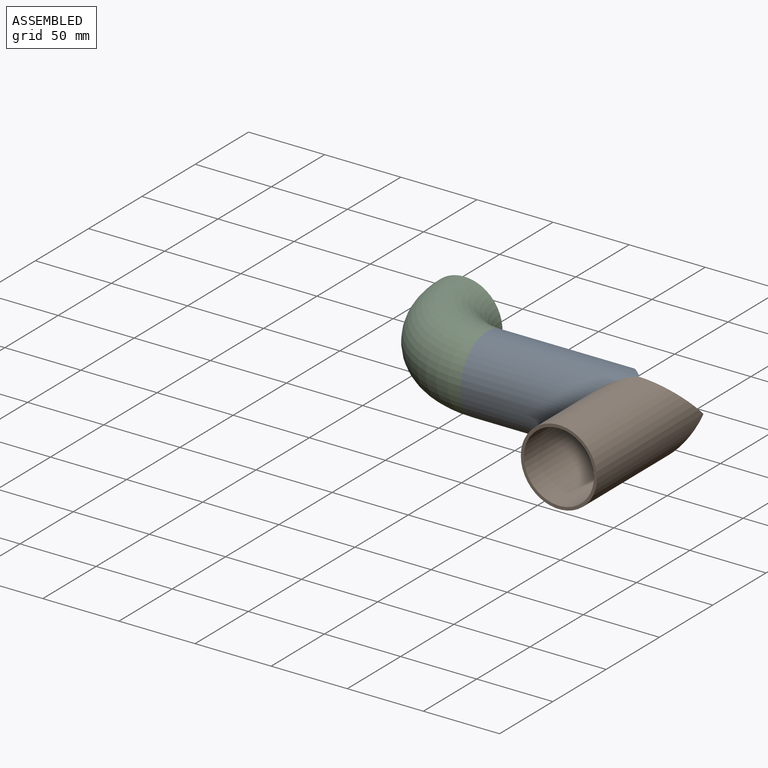
[diagram: assembled view]
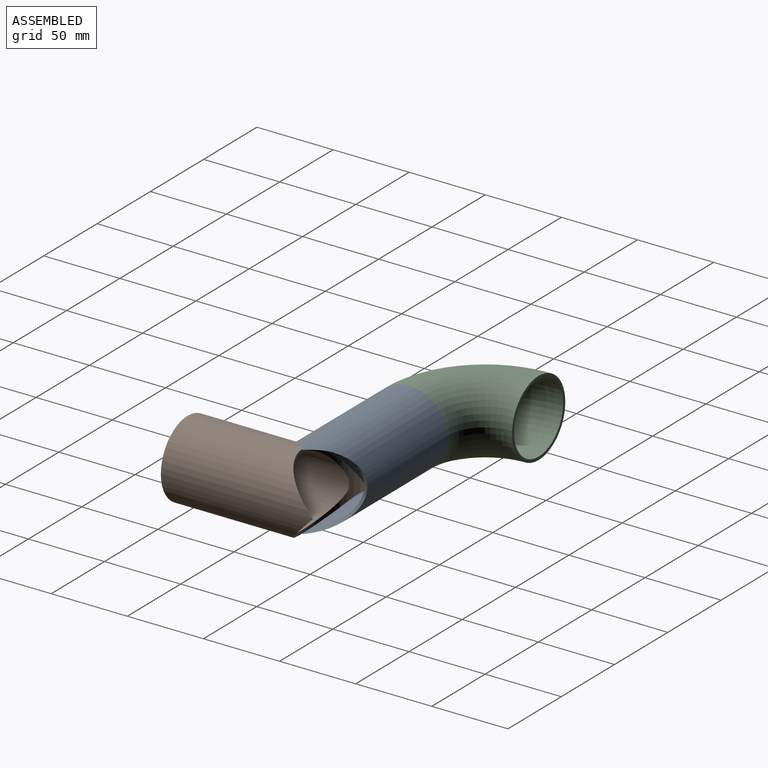
[diagram: assembled view, second angle]
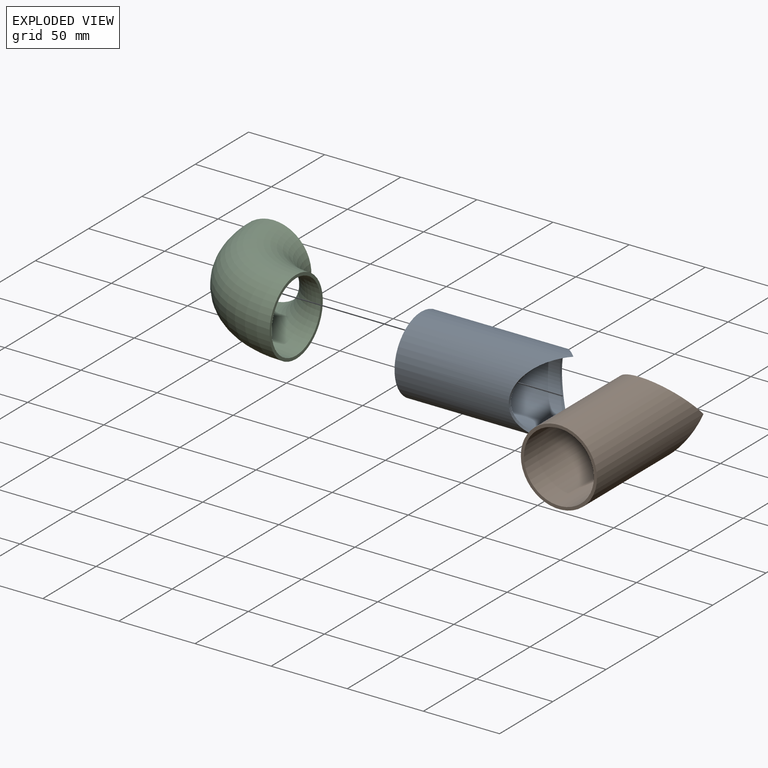
[diagram: exploded view]
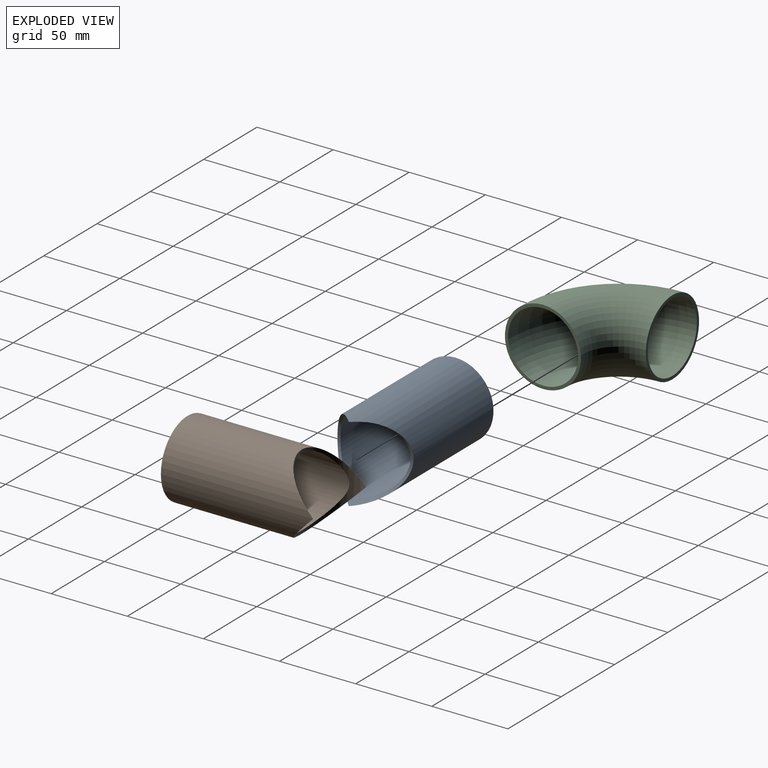
[diagram: exploded view, second angle]
ASSEMBLY  parts=3 mates=4
PART A: 4 faces, bbox 50x50.2x100 mm
  f0: cylinder r=23mm len=90.21mm, axis (0,0,-1), area 11815.7mm2, adj f2,f3
  f1: cylinder r=25mm len=100mm, axis (0,0,-1), area 13208mm2, adj f2,f3
  f2: plane 50x50mm, normal (0,0,1), area 301.6mm2, adj f0,f1
  f3: cylinder r=25mm len=50.17mm, axis (0,-1,0), area 548.8mm2, adj f0,f1
PART B: same geometry as A
PART C: 4 faces, bbox 81.2x81.2x50 mm
  f0: torus R=50mm, axis (0,0,-1), area 11350mm2, adj f2,f3
  f1: torus R=50mm, axis (0,0,-1), area 12337mm2, adj f2,f3
  f2: plane 50x50mm, normal (1,0,0), area 301.6mm2, adj f0,f1
  f3: plane 50x50mm, normal (0,1,0), area 301.6mm2, adj f0,f1
PLACE A rot(axis=(0,-1,0),90deg) t=(66.63,-78.23,23.12)mm
PLACE B rot(axis=(0,-0.71,0.71),180deg) t=(66.63,-53.83,23.12)mm
PLACE C t=(-33.37,-28.23,23.12)mm fixed
MATE fastened C.f2 <-> A.f1  axis (1,0,0) through (-33.37,-78.23,23.12)mm
MATE slider B.f1 <-> A.f3  axis (0,1,0) through (66.63,-103.53,23.12)mm
MATE slider A.f1 <-> C.f2  axis (-1,0,0) through (-33.37,-78.23,23.12)mm
MATE parallel A.f1 <-> C.f2  axis (-1,0,0) through (-33.37,-78.23,23.12)mm
